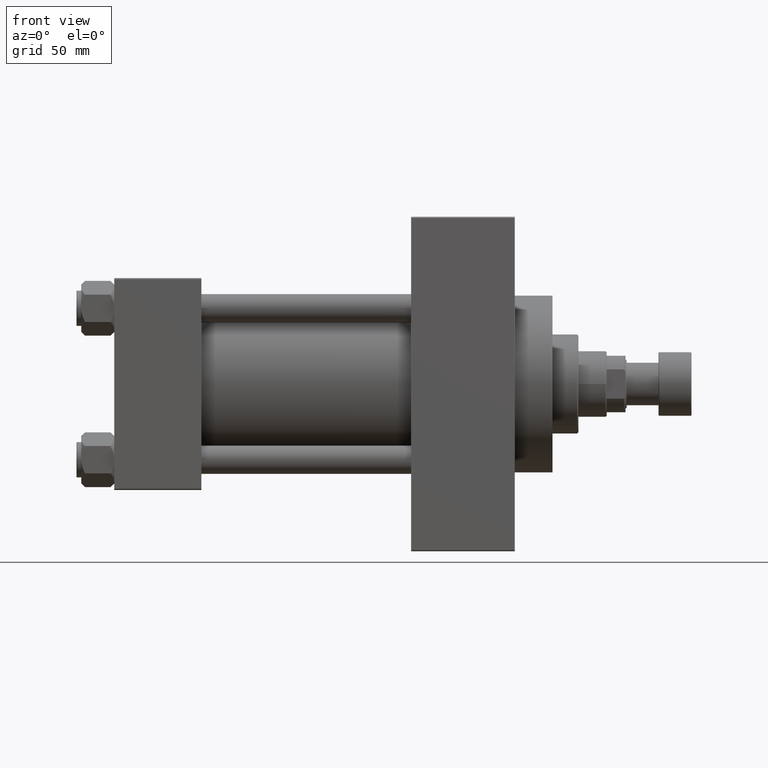
[diagram: clean part render]
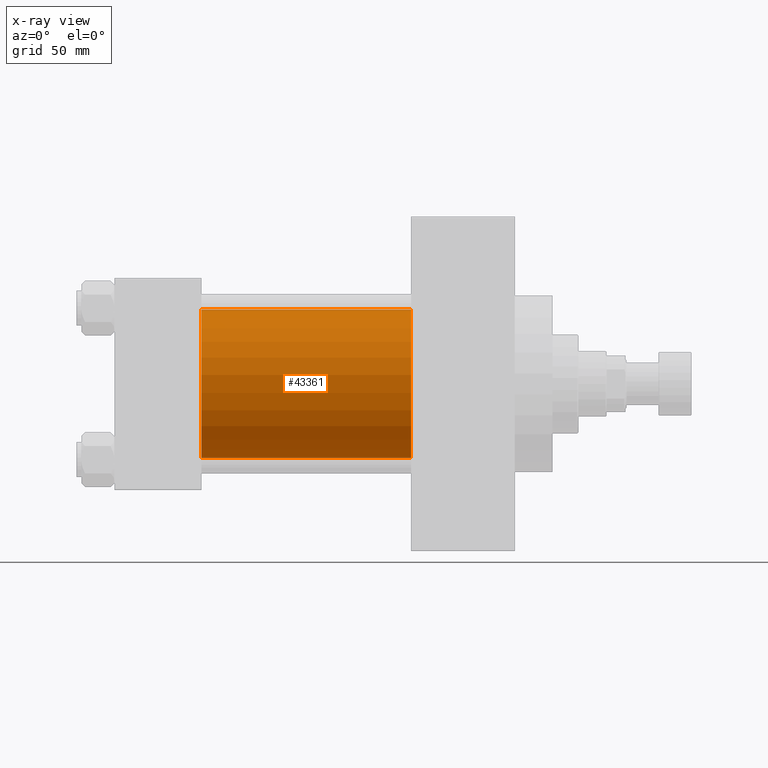
[diagram: x-ray — body ghosted, one internal face saturated and labeled with its STEP entity id]
A machine part, front view, then the same camera in x-ray: the body is ghosted and one INTERNAL B-rep face — a face not visible from any outside direction — is saturated and labeled: STEP entity #43361.
In plain terms, the highlighted cylindrical surface (partial cylindrical patch) has radius 31.5 mm, axis along (-1, -0, -0).
Its self-contained STEP definition (entity closure, byte-faithful):
#1138 = VERTEX_POINT ( 'NONE', #15605 ) ;
#3799 = CARTESIAN_POINT ( 'NONE',  ( 126.0000000000000000, -2.602085213965210642E-15, 31.50000000000000000 ) ) ;
#5735 = ORIENTED_EDGE ( 'NONE', *, *, #12641, .F. ) ;
#6471 = DIRECTION ( 'NONE',  ( 0.000000000000000000, 0.000000000000000000, 1.000000000000000000 ) ) ;
#7592 = CIRCLE ( 'NONE', #19879, 31.50000000000000000 ) ;
#9109 = VECTOR ( 'NONE', #14859, 1000.000000000000000 ) ;
#11095 = LINE ( 'NONE', #12663, #26627 ) ;
#11405 = CIRCLE ( 'NONE', #12142, 31.50000000000000000 ) ;
#11493 = VERTEX_POINT ( 'NONE', #20886 ) ;
#12142 = AXIS2_PLACEMENT_3D ( 'NONE', #47317, #35521, #28278 ) ;
#12558 = EDGE_CURVE ( 'NONE', #1138, #11493, #7592, .T. ) ;
#12641 = EDGE_CURVE ( 'NONE', #47537, #1138, #25714, .T. ) ;
#12663 = CARTESIAN_POINT ( 'NONE',  ( 126.0000000000000000, 1.255552203348951850E-15, -31.50000000000000000 ) ) ;
#14859 = DIRECTION ( 'NONE',  ( -1.000000000000000000, -0.000000000000000000, -0.000000000000000000 ) ) ;
#15017 = ORIENTED_EDGE ( 'NONE', *, *, #42578, .T. ) ;
#15605 = CARTESIAN_POINT ( 'NONE',  ( 37.00000000000000000, -2.602085213965210642E-15, 31.50000000000000000 ) ) ;
#17403 = CARTESIAN_POINT ( 'NONE',  ( 126.0000000000000000, -2.602085213965210642E-15, 31.50000000000000000 ) ) ;
#19879 = AXIS2_PLACEMENT_3D ( 'NONE', #22328, #41117, #44496 ) ;
#20886 = CARTESIAN_POINT ( 'NONE',  ( 37.00000000000000000, 1.255552203348951850E-15, -31.50000000000000000 ) ) ;
#22328 = CARTESIAN_POINT ( 'NONE',  ( 37.00000000000000000, -2.602085213965210642E-15, 0.000000000000000000 ) ) ;
#24788 = FACE_OUTER_BOUND ( 'NONE', #31253, .T. ) ;
#25714 = LINE ( 'NONE', #3799, #9109 ) ;
#26627 = VECTOR ( 'NONE', #34617, 1000.000000000000000 ) ;
#26903 = CARTESIAN_POINT ( 'NONE',  ( 126.0000000000000000, 1.255552203348951850E-15, -31.50000000000000000 ) ) ;
#27313 = ORIENTED_EDGE ( 'NONE', *, *, #33204, .T. ) ;
#27916 = DIRECTION ( 'NONE',  ( -1.000000000000000000, -0.000000000000000000, -0.000000000000000000 ) ) ;
#28278 = DIRECTION ( 'NONE',  ( 0.000000000000000000, 0.000000000000000000, -1.000000000000000000 ) ) ;
#29521 = ORIENTED_EDGE ( 'NONE', *, *, #12558, .F. ) ;
#31253 = EDGE_LOOP ( 'NONE', ( #15017, #27313, #29521, #5735 ) ) ;
#31546 = CYLINDRICAL_SURFACE ( 'NONE', #36073, 31.50000000000000000 ) ;
#32617 = VERTEX_POINT ( 'NONE', #26903 ) ;
#33204 = EDGE_CURVE ( 'NONE', #32617, #11493, #11095, .T. ) ;
#34617 = DIRECTION ( 'NONE',  ( -1.000000000000000000, -0.000000000000000000, -0.000000000000000000 ) ) ;
#35521 = DIRECTION ( 'NONE',  ( 1.000000000000000000, 0.000000000000000000, 0.000000000000000000 ) ) ;
#36073 = AXIS2_PLACEMENT_3D ( 'NONE', #39493, #27916, #6471 ) ;
#39493 = CARTESIAN_POINT ( 'NONE',  ( 126.0000000000000000, -2.602085213965210642E-15, 0.000000000000000000 ) ) ;
#41117 = DIRECTION ( 'NONE',  ( 1.000000000000000000, 0.000000000000000000, 0.000000000000000000 ) ) ;
#42578 = EDGE_CURVE ( 'NONE', #47537, #32617, #11405, .T. ) ;
#43361 = ADVANCED_FACE ( 'NONE', ( #24788 ), #31546, .F. ) ;
#44496 = DIRECTION ( 'NONE',  ( 0.000000000000000000, 0.000000000000000000, -1.000000000000000000 ) ) ;
#47317 = CARTESIAN_POINT ( 'NONE',  ( 126.0000000000000000, -2.602085213965210642E-15, 0.000000000000000000 ) ) ;
#47537 = VERTEX_POINT ( 'NONE', #17403 ) ;